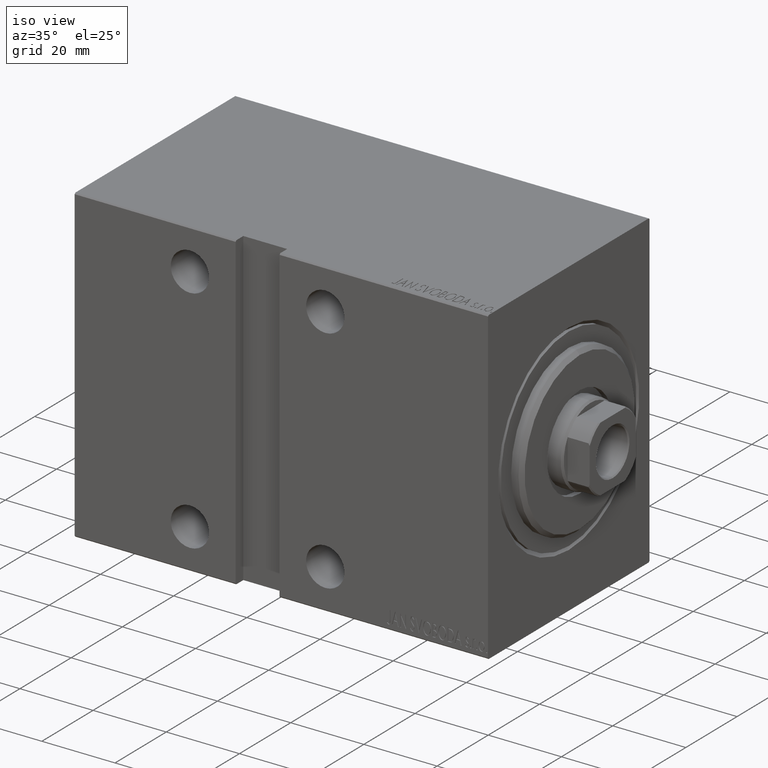
[diagram: clean part render]
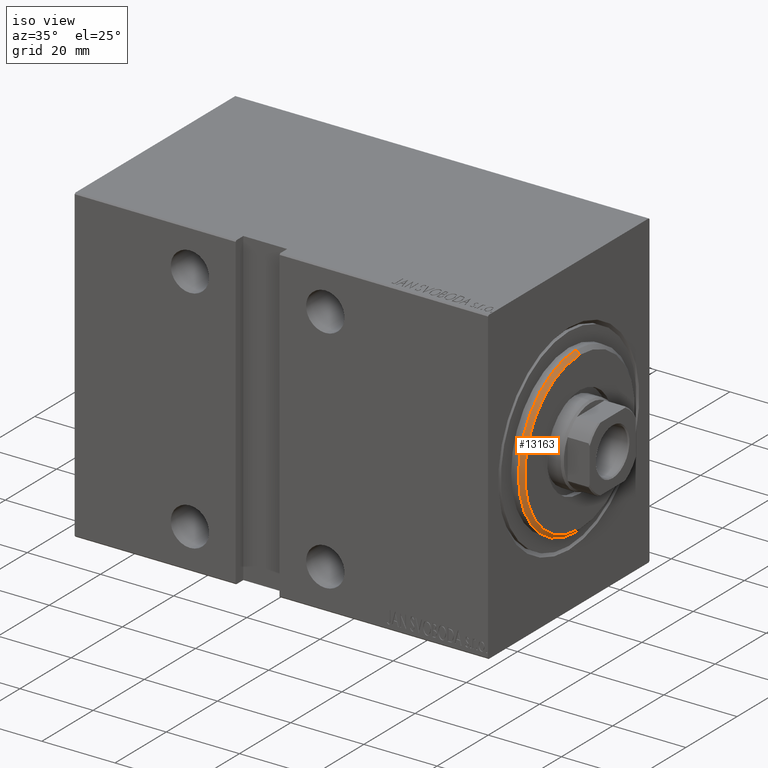
[diagram: same view with one face highlighted and labeled with its STEP entity id]
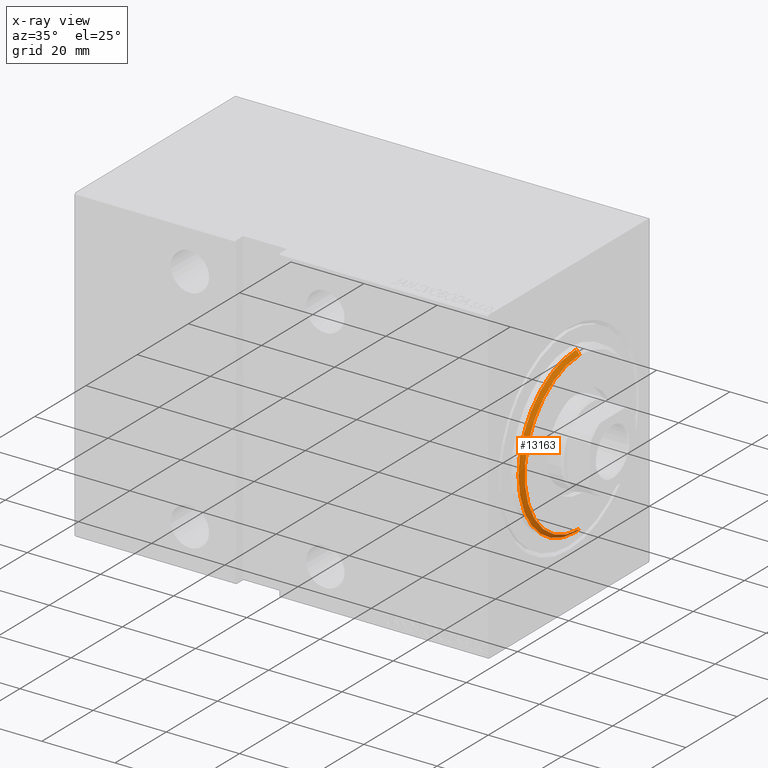
[diagram: x-ray of the same camera — body ghosted, the highlighted face saturated]
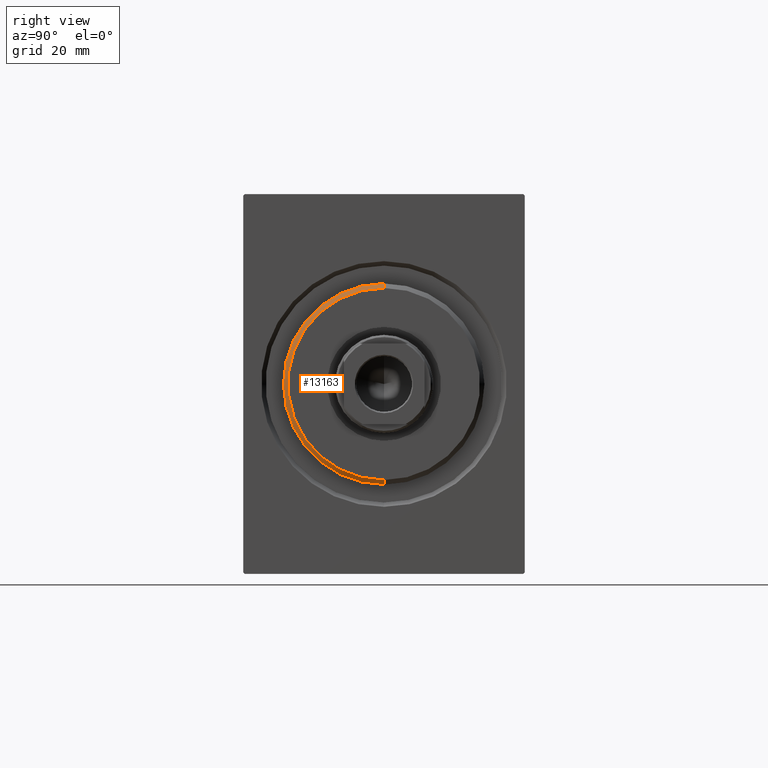
[diagram: same view with one face highlighted and labeled with its STEP entity id]
A machine part, iso view. The second image highlights one B-rep face of the part: STEP entity #13163.
The next image is the same camera in x-ray: the body ghosted, the highlighted face saturated — about 0% of this face is hidden behind the body in this view.
A second angle (right view) of the same face is appended — the face is thin or edge-on in the first view.
In plain terms, the highlighted conical surface has half-angle 45 deg.
Its self-contained STEP definition (entity closure, byte-faithful):
#1887 = DIRECTION ( 'NONE',  ( 0.000000000000000000, 0.000000000000000000, 1.000000000000000000 ) ) ;
#2794 = DIRECTION ( 'NONE',  ( -0.7071067811865487940, 0.000000000000000000, 0.7071067811865463515 ) ) ;
#3497 = EDGE_CURVE ( 'NONE', #17687, #41958, #14945, .T. ) ;
#5288 = DIRECTION ( 'NONE',  ( 1.000000000000000000, -0.000000000000000000, 0.000000000000000000 ) ) ;
#6282 = CARTESIAN_POINT ( 'NONE',  ( 3.000000000000000000, 0.000000000000000000, 21.50000000000001066 ) ) ;
#6457 = CARTESIAN_POINT ( 'NONE',  ( 2.000000000000006217, 0.000000000000000000, 0.000000000000000000 ) ) ;
#6653 = AXIS2_PLACEMENT_3D ( 'NONE', #6457, #19746, #19953 ) ;
#7255 = CARTESIAN_POINT ( 'NONE',  ( 2.000000000000006217, 2.755455298081545172E-15, -22.50000000000000355 ) ) ;
#7296 = CARTESIAN_POINT ( 'NONE',  ( 3.000000000000000000, 2.694222958124177993E-15, -21.50000000000001066 ) ) ;
#8165 = VECTOR ( 'NONE', #37665, 1000.000000000000000 ) ;
#8763 = CARTESIAN_POINT ( 'NONE',  ( 2.000000000000006217, 0.000000000000000000, 22.50000000000000355 ) ) ;
#10392 = VERTEX_POINT ( 'NONE', #38834 ) ;
#11041 = CARTESIAN_POINT ( 'NONE',  ( 3.000000000000000000, 2.632990618166810813E-15, -21.50000000000001066 ) ) ;
#12213 = CIRCLE ( 'NONE', #6653, 22.50000000000000355 ) ;
#13163 = ADVANCED_FACE ( 'NONE', ( #21509 ), #14653, .T. ) ;
#14653 = CONICAL_SURFACE ( 'NONE', #39044, 21.50000000000001066, 0.7853981633974466137 ) ;
#14945 = LINE ( 'NONE', #11041, #8165 ) ;
#15050 = CIRCLE ( 'NONE', #35271, 21.50000000000001066 ) ;
#15834 = CARTESIAN_POINT ( 'NONE',  ( 3.000000000000000000, 0.000000000000000000, 0.000000000000000000 ) ) ;
#17687 = VERTEX_POINT ( 'NONE', #7296 ) ;
#19746 = DIRECTION ( 'NONE',  ( -1.000000000000000000, 0.000000000000000000, 0.000000000000000000 ) ) ;
#19953 = DIRECTION ( 'NONE',  ( 0.000000000000000000, 0.000000000000000000, -1.000000000000000000 ) ) ;
#21509 = FACE_OUTER_BOUND ( 'NONE', #25013, .T. ) ;
#22855 = VERTEX_POINT ( 'NONE', #8763 ) ;
#24426 = ORIENTED_EDGE ( 'NONE', *, *, #37048, .F. ) ;
#25013 = EDGE_LOOP ( 'NONE', ( #31355, #24426, #37533, #26386 ) ) ;
#25694 = LINE ( 'NONE', #6282, #32451 ) ;
#26386 = ORIENTED_EDGE ( 'NONE', *, *, #35677, .F. ) ;
#31355 = ORIENTED_EDGE ( 'NONE', *, *, #3497, .F. ) ;
#32451 = VECTOR ( 'NONE', #2794, 1000.000000000000000 ) ;
#32583 = EDGE_CURVE ( 'NONE', #10392, #22855, #25694, .T. ) ;
#35175 = CARTESIAN_POINT ( 'NONE',  ( 3.000000000000000000, 0.000000000000000000, 0.000000000000000000 ) ) ;
#35271 = AXIS2_PLACEMENT_3D ( 'NONE', #35175, #5288, #41923 ) ;
#35677 = EDGE_CURVE ( 'NONE', #41958, #22855, #12213, .T. ) ;
#37048 = EDGE_CURVE ( 'NONE', #10392, #17687, #15050, .T. ) ;
#37533 = ORIENTED_EDGE ( 'NONE', *, *, #32583, .T. ) ;
#37665 = DIRECTION ( 'NONE',  ( -0.7071067811865487940, 8.659560562354919300E-17, -0.7071067811865463515 ) ) ;
#38739 = DIRECTION ( 'NONE',  ( -1.000000000000000000, 0.000000000000000000, 0.000000000000000000 ) ) ;
#38834 = CARTESIAN_POINT ( 'NONE',  ( 3.000000000000000000, 0.000000000000000000, 21.50000000000001066 ) ) ;
#39044 = AXIS2_PLACEMENT_3D ( 'NONE', #15834, #38739, #1887 ) ;
#41923 = DIRECTION ( 'NONE',  ( 0.000000000000000000, 0.000000000000000000, -1.000000000000000000 ) ) ;
#41958 = VERTEX_POINT ( 'NONE', #7255 ) ;